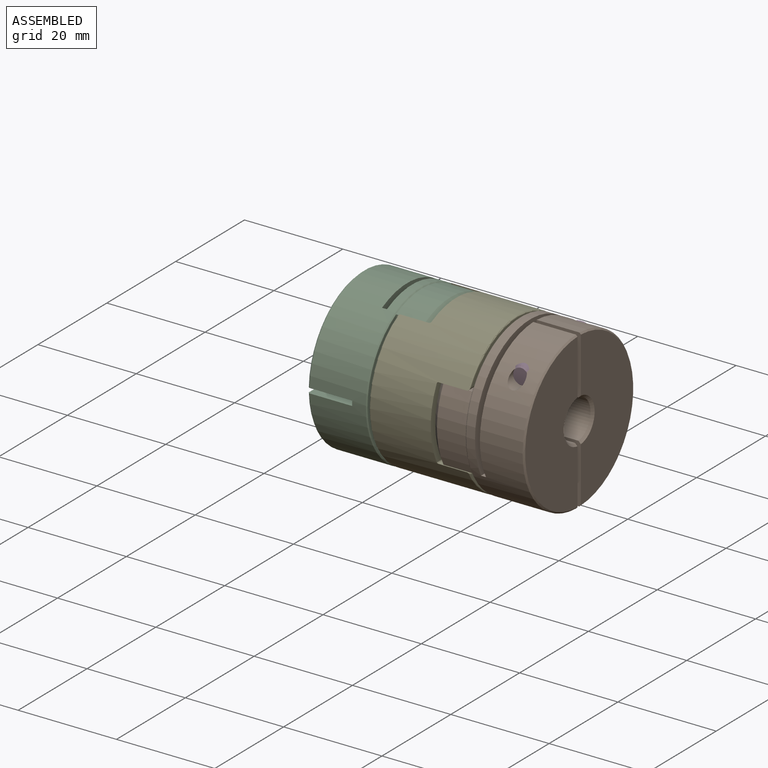
[diagram: assembled view]
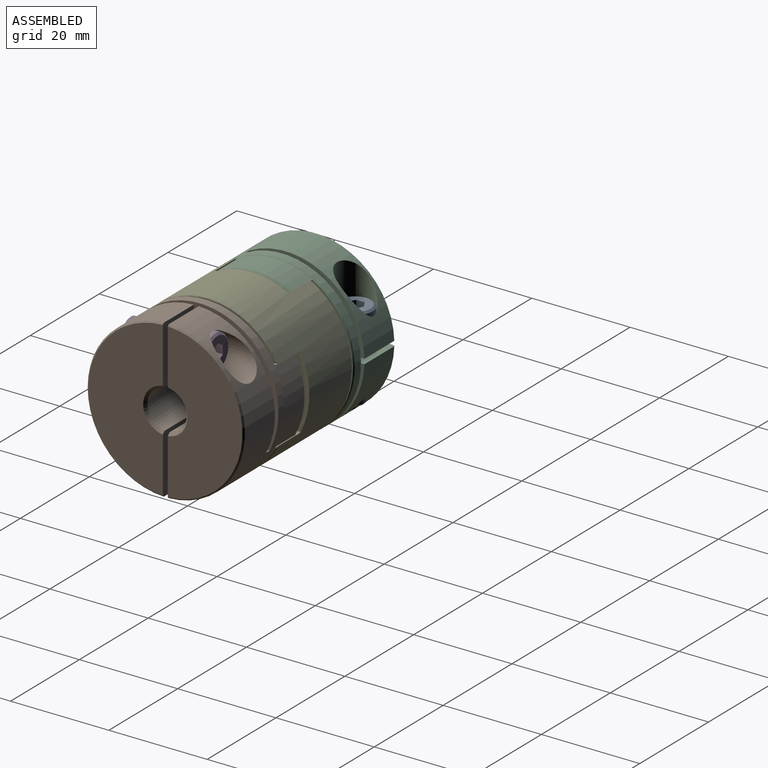
[diagram: assembled view, second angle]
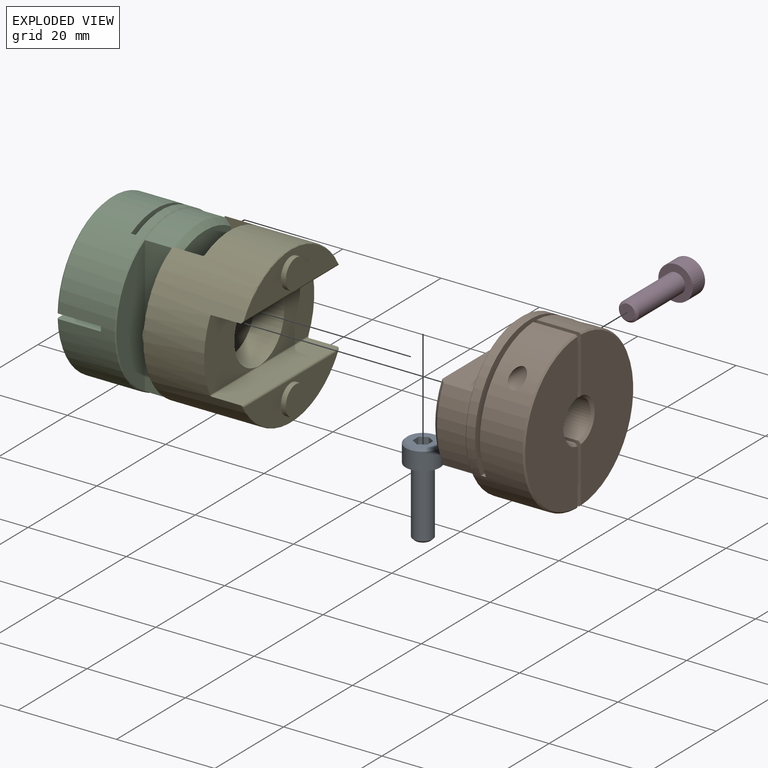
[diagram: exploded view]
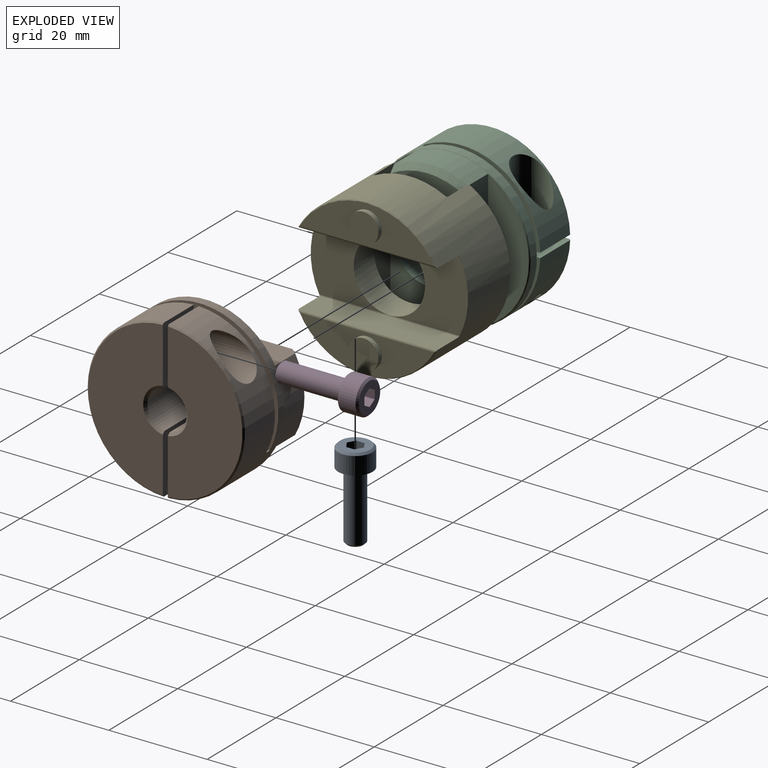
[diagram: exploded view, second angle]
ASSEMBLY  parts=5 mates=5
PART A: 20 faces, bbox 18x7x7 mm
  f0: cone r=3.1mm half-angle=45deg, axis (1,0,0), area 11.7mm2, adj f1,f13
  f1: plane 6.2x6.2mm, normal (-1,0,0), area 22.4mm2, adj f0,f2,f3,f4,f5,f6,f7
  f2: plane 2x1.5mm, normal (0,-0.87,0.5), area 3.5mm2, adj f1,f3,f4,f16,f17
  f3: plane 2x1.5mm, normal (0,-0.87,-0.5), area 3.5mm2, adj f1,f2,f7,f17,f18
  f4: plane 2x1.73mm, normal (0,0,1), area 3.5mm2, adj f1,f2,f5,f14,f16
  f5: plane 2x1.5mm, normal (0,0.87,0.5), area 3.5mm2, adj f1,f4,f6,f14,f15
  f6: plane 2x1.5mm, normal (0,0.87,-0.5), area 3.5mm2, adj f1,f5,f7,f15,f19
  f7: plane 2x1.73mm, normal (0,0,-1), area 3.5mm2, adj f1,f3,f6,f18,f19
  f8: cone r=1.5mm half-angle=75deg, axis (-1,0,0), area 7.3mm2, adj f14,f15,f16,f17,f18,f19
  f9: plane 3.14x3.14mm, normal (1,0,0), area 7.7mm2, adj f10
  f10: cone r=2mm half-angle=45deg, axis (-1,0,0), area 6.8mm2, adj f9,f11
  f11: cylinder r=2mm len=13.57mm, axis (-1,0,0), area 170.5mm2, adj f10,f12
  f12: plane 7x7mm, normal (1,0,0), area 25.9mm2, adj f11,f13
  f13: cylinder r=3.5mm len=7mm, axis (-1,0,0), area 79.2mm2, adj f0,f12
  f14: plane 1.3x0.75mm, normal (-1,0,0), area 0.1mm2, adj f4,f5,f8
  f15: plane 1.5x0.43mm, normal (-1,0,0), area 0.1mm2, adj f5,f6,f8
  f16: plane 1.3x0.75mm, normal (-1,0,0), area 0.1mm2, adj f2,f4,f8
  f17: plane 1.5x0.43mm, normal (-1,0,0), area 0.1mm2, adj f2,f3,f8
  f18: plane 1.3x0.75mm, normal (-1,0,0), area 0.1mm2, adj f3,f7,f8
  f19: plane 1.3x0.75mm, normal (-1,0,0), area 0.1mm2, adj f6,f7,f8
PART B: 34 faces, bbox 19x32x32 mm
  f0: plane 12.03x9mm, normal (0,0,1), area 99.8mm2, adj f1,f8,f9,f10,f15,f19,f26
  f1: cone r=4.5mm half-angle=45deg, axis (-1,0,0), area 8.7mm2, adj f0,f9,f19,f29
  f2: plane 27.84x7.03mm, normal (0,-1,0), area 193.2mm2, adj f23,f24,f25,f27,f31,f32
  f3: plane 27.84x7.03mm, normal (0,1,0), area 193.2mm2, adj f5,f23,f24,f25,f31,f32
  f4: plane 32x23.3mm, normal (-1,0,0), area 577.1mm2, adj f6,f7,f21
  f5: plane 27.81x8.3mm, normal (1,0,0), area 164.4mm2, adj f3,f22
  f6: plane 28.48x1mm, normal (0,1,0), area 28.5mm2, adj f4,f7,f26,f28,f33
  f7: cylinder r=16mm len=32mm, axis (-1,0,0), area 793.6mm2, adj f4,f6,f8,f11,f14,f15,f16,f22
  f8: cylinder r=16mm len=15.99mm, axis (-1,0,0), area 202.9mm2, adj f0,f7,f10,f15,f26
  f9: cylinder r=4mm len=8.5mm, axis (-1,0,0), area 98.3mm2, adj f0,f1,f26,f29
  f10: cylinder r=1.62mm len=12.46mm, axis (0,0,-1), area 112.1mm2, adj f0,f8
  f11: cylinder r=3.7mm len=10.74mm, axis (0,0,-1), area 173.5mm2, adj f7,f12
  f12: plane 7.4x7.4mm, normal (0,0,1), area 29.2mm2, adj f11,f13
  f13: cylinder r=2.1mm len=4.2mm, axis (0,0,-1), area 39.6mm2, adj f12,f14
  f14: plane 12.03x9mm, normal (0,0,-1), area 94.2mm2, adj f7,f13,f16,f17,f18,f20,f33
  f15: cone r=16mm half-angle=45deg, axis (1,0,0), area 20.7mm2, adj f0,f7,f8,f19,f29
  f16: cone r=16mm half-angle=45deg, axis (1,0,0), area 20.7mm2, adj f7,f14,f18,f30
  f17: cone r=4.5mm half-angle=45deg, axis (-1,0,0), area 8.7mm2, adj f14,f18,f20,f30
  f18: plane 31.38x15.2mm, normal (-1,0,0), area 344.2mm2, adj f14,f16,f17,f30
  f19: plane 31.38x15.2mm, normal (-1,0,0), area 344.2mm2, adj f0,f1,f15,f29
  f20: cylinder r=4mm len=8.5mm, axis (-1,0,0), area 98.3mm2, adj f14,f17,f30,f33
  f21: cylinder r=4mm len=9mm, axis (-1,0,0), area 226.2mm2, adj f4,f24
  f22: cone r=15.8mm half-angle=45deg, axis (-1,0,0), area 28.3mm2, adj f5,f7,f23,f27,f31
  f23: cylinder r=15.8mm len=15mm, axis (-1,0,0), area 91.7mm2, adj f2,f3,f22,f25
  f24: plane 29.34x15mm, normal (1,0,0), area 369.8mm2, adj f2,f3,f21,f25,f32
  f25: cone r=14.67mm half-angle=45deg, axis (-1,0,0), area 25.1mm2, adj f2,f3,f23,f24
  f26: plane 23.29x15.5mm, normal (1,0,0), area 280.9mm2, adj f0,f6,f7,f8,f9,f29
  f27: plane 27.81x8.3mm, normal (1,0,0), area 164.4mm2, adj f2,f22
  f28: plane 8.7x1mm, normal (-1,0,0), area 8.7mm2, adj f6,f7,f29,f30
  f29: plane 12.03x9mm, normal (0,0,1), area 108mm2, adj f1,f7,f9,f15,f19,f26,f28
  f30: plane 12.03x9mm, normal (0,0,-1), area 108mm2, adj f7,f16,f17,f18,f20,f28,f33
  f31: cylinder r=15.8mm len=15mm, axis (-1,0,0), area 91.7mm2, adj f2,f3,f22,f32
  f32: cone r=14.67mm half-angle=45deg, axis (-1,0,0), area 25.1mm2, adj f2,f3,f24,f31
  f33: plane 23.29x15.5mm, normal (1,0,0), area 280.9mm2, adj f6,f7,f14,f20,f30
PART C: 34 faces, bbox 19x32x32 mm
  f0: plane 10.01x9mm, normal (0,0,1), area 81.7mm2, adj f1,f8,f9,f10,f15,f19,f26
  f1: cone r=6.5mm half-angle=45deg, axis (-1,0,0), area 13.2mm2, adj f0,f9,f19,f29
  f2: plane 27.84x7.03mm, normal (0,-1,0), area 193.2mm2, adj f23,f24,f25,f27,f31,f32
  f3: plane 27.84x7.03mm, normal (0,1,0), area 193.2mm2, adj f5,f23,f24,f25,f31,f32
  f4: plane 32x23.3mm, normal (-1,0,0), area 514.2mm2, adj f6,f7,f21
  f5: plane 27.81x8.3mm, normal (1,0,0), area 164.4mm2, adj f3,f22
  f6: plane 28.48x1mm, normal (0,1,0), area 28.5mm2, adj f4,f7,f26,f28,f33
  f7: cylinder r=16mm len=32mm, axis (-1,0,0), area 793.6mm2, adj f4,f6,f8,f11,f14,f15,f16,f22
  f8: cylinder r=16mm len=15.99mm, axis (-1,0,0), area 202.9mm2, adj f0,f7,f10,f15,f26
  f9: cylinder r=6mm len=11.96mm, axis (-1,0,0), area 151.7mm2, adj f0,f1,f26,f29
  f10: cylinder r=1.62mm len=12.46mm, axis (0,0,-1), area 112.1mm2, adj f0,f8
  f11: cylinder r=3.7mm len=10.74mm, axis (0,0,-1), area 173.5mm2, adj f7,f12
  f12: plane 7.4x7.4mm, normal (0,0,1), area 29.2mm2, adj f11,f13
  f13: cylinder r=2.1mm len=4.2mm, axis (0,0,-1), area 39.6mm2, adj f12,f14
  f14: plane 10.01x9mm, normal (0,0,-1), area 76.1mm2, adj f7,f13,f16,f17,f18,f20,f33
  f15: cone r=16mm half-angle=45deg, axis (1,0,0), area 20.7mm2, adj f0,f7,f8,f19,f29
  f16: cone r=16mm half-angle=45deg, axis (1,0,0), area 20.7mm2, adj f7,f14,f18,f30
  f17: cone r=6.5mm half-angle=45deg, axis (-1,0,0), area 13.2mm2, adj f14,f18,f20,f30
  f18: plane 31.38x15.2mm, normal (-1,0,0), area 311.6mm2, adj f14,f16,f17,f30
  f19: plane 31.38x15.2mm, normal (-1,0,0), area 311.6mm2, adj f0,f1,f15,f29
  f20: cylinder r=6mm len=11.96mm, axis (-1,0,0), area 151.7mm2, adj f14,f17,f30,f33
  f21: cylinder r=6mm len=12mm, axis (-1,0,0), area 339.3mm2, adj f4,f24
  f22: cone r=15.8mm half-angle=45deg, axis (-1,0,0), area 28.3mm2, adj f5,f7,f23,f27,f31
  f23: cylinder r=15.8mm len=15mm, axis (-1,0,0), area 91.7mm2, adj f2,f3,f22,f25
  f24: plane 29.34x15mm, normal (1,0,0), area 307mm2, adj f2,f3,f21,f25,f32
  f25: cone r=14.67mm half-angle=45deg, axis (-1,0,0), area 25.1mm2, adj f2,f3,f23,f24
  f26: plane 23.29x15.5mm, normal (1,0,0), area 251.5mm2, adj f0,f6,f7,f8,f9,f29
  f27: plane 27.81x8.3mm, normal (1,0,0), area 164.4mm2, adj f2,f22
  f28: plane 8.7x1mm, normal (-1,0,0), area 8.7mm2, adj f6,f7,f29,f30
  f29: plane 10.01x9mm, normal (0,0,1), area 89.9mm2, adj f1,f7,f9,f15,f19,f26,f28
  f30: plane 10.01x9mm, normal (0,0,-1), area 89.9mm2, adj f7,f16,f17,f18,f20,f28,f33
  f31: cylinder r=15.8mm len=15mm, axis (-1,0,0), area 91.7mm2, adj f2,f3,f22,f32
  f32: cone r=14.67mm half-angle=45deg, axis (-1,0,0), area 25.1mm2, adj f2,f3,f24,f31
  f33: plane 23.29x15.5mm, normal (1,0,0), area 251.5mm2, adj f6,f7,f14,f20,f30
PART D: same geometry as A
PART E: 34 faces, bbox 21x34.6x34.6 mm
  f0: cylinder r=0.3mm len=28.58mm, axis (0,1,0), area 13.3mm2, adj f2,f19,f22,f23,f30
  f1: cylinder r=0.3mm len=28.58mm, axis (0,1,0), area 13.3mm2, adj f2,f21,f22,f23,f30
  f2: cylinder r=7.25mm len=14.5mm, axis (-1,0,0), area 273.3mm2, adj f0,f1,f3,f6,f8,f22,f23,f31
  f3: cylinder r=0.3mm len=28.58mm, axis (0,0,1), area 13.3mm2, adj f2,f8,f30,f31,f33
  f4: cylinder r=0.5mm len=28.27mm, axis (0,0,1), area 21.9mm2, adj f5,f7,f28,f30
  f5: torus R=15.8mm, axis (1,0,0), area 10.6mm2, adj f4,f28,f30
  f6: cylinder r=0.3mm len=28.58mm, axis (0,0,1), area 13.3mm2, adj f2,f7,f8,f30,f31
  f7: plane 28.27x5.7mm, normal (0,-1,0), area 161.1mm2, adj f4,f6,f30
  f8: plane 15.15x14.4mm, normal (-1,0,0), area 139.9mm2, adj f2,f3,f6,f30
  f9: cylinder r=0.5mm len=28.27mm, axis (0,1,0), area 21.9mm2, adj f14,f15,f19,f30
  f10: cylinder r=0.5mm len=28.27mm, axis (0,1,0), area 21.9mm2, adj f12,f13,f21,f30
  f11: cylinder r=3mm len=6mm, axis (-1,0,0), area 18.8mm2, adj f12,f20
  f12: plane 27.25x7.8mm, normal (1,0,0), area 122.3mm2, adj f10,f11,f13
  f13: torus R=15.8mm, axis (1,0,0), area 10.6mm2, adj f10,f12,f30
  f14: plane 27.25x7.8mm, normal (1,0,0), area 122.3mm2, adj f9,f15,f17
  f15: torus R=15.8mm, axis (1,0,0), area 10.6mm2, adj f9,f14,f30
  f16: plane 27.25x7.8mm, normal (-1,0,0), area 122.3mm2, adj f24,f29,f32
  f17: cylinder r=3mm len=6mm, axis (-1,0,0), area 18.8mm2, adj f14,f18
  f18: plane 6x6mm, normal (1,0,0), area 28.3mm2, adj f17
  f19: plane 28.27x5.7mm, normal (0,0,1), area 161.1mm2, adj f0,f9,f30
  f20: plane 6x6mm, normal (1,0,0), area 28.3mm2, adj f11
  f21: plane 28.27x5.7mm, normal (0,0,-1), area 161.1mm2, adj f1,f10,f30
  f22: plane 15.15x14.4mm, normal (1,0,0), area 139.9mm2, adj f0,f1,f2,f30
  f23: plane 15.15x14.4mm, normal (1,0,0), area 139.9mm2, adj f0,f1,f2,f30
  f24: cylinder r=3mm len=6mm, axis (-1,0,0), area 18.8mm2, adj f16,f25
  f25: plane 6x6mm, normal (-1,0,0), area 28.3mm2, adj f24
  f26: cylinder r=3mm len=6mm, axis (-1,0,0), area 18.8mm2, adj f27,f28
  f27: plane 6x6mm, normal (-1,0,0), area 28.3mm2, adj f26
  f28: plane 27.25x7.8mm, normal (-1,0,0), area 122.3mm2, adj f4,f5,f26
  f29: torus R=15.8mm, axis (1,0,0), area 10.6mm2, adj f16,f30,f32
  f30: cylinder r=16mm len=32mm, axis (-1,0,0), area 1476.7mm2, adj f0,f1,f3,f4,f5,f6,f7,f8
  f31: plane 15.15x14.4mm, normal (-1,0,0), area 139.9mm2, adj f2,f3,f6,f30
  f32: cylinder r=0.5mm len=28.27mm, axis (0,0,1), area 21.9mm2, adj f16,f29,f30,f33
  f33: plane 28.27x5.7mm, normal (0,1,0), area 161.1mm2, adj f3,f30,f32
PLACE A rot(axis=(0.71,0,-0.71),180deg) t=(17.6,12.45,8.22)mm
PLACE B rot(axis=(0,0.71,0.71),180deg) t=(57.1,1.45,4.72)mm
PLACE C t=(13.1,1.45,4.72)mm
PLACE D rot(axis=(-0.58,0.58,-0.58),120deg) t=(52.6,4.95,15.72)mm
PLACE E t=(24.6,1.45,4.72)mm
MATE fastened A.f0 <-> C.f10  axis (0,0,1) through (17.6,12.45,8.22)mm
MATE revolute B.f1 <-> E.f2  axis (-1,0,0) through (38.1,1.45,4.72)mm
MATE fastened D.f0 <-> B.f10  axis (0,-1,0) through (52.6,4.95,15.72)mm
MATE parallel B.f3 <-> E.f21  axis (0,0,1) through (41.62,1.45,12.22)mm
MATE revolute C.f1 <-> E.f2  axis (1,0,0) through (32.1,1.45,4.72)mm
